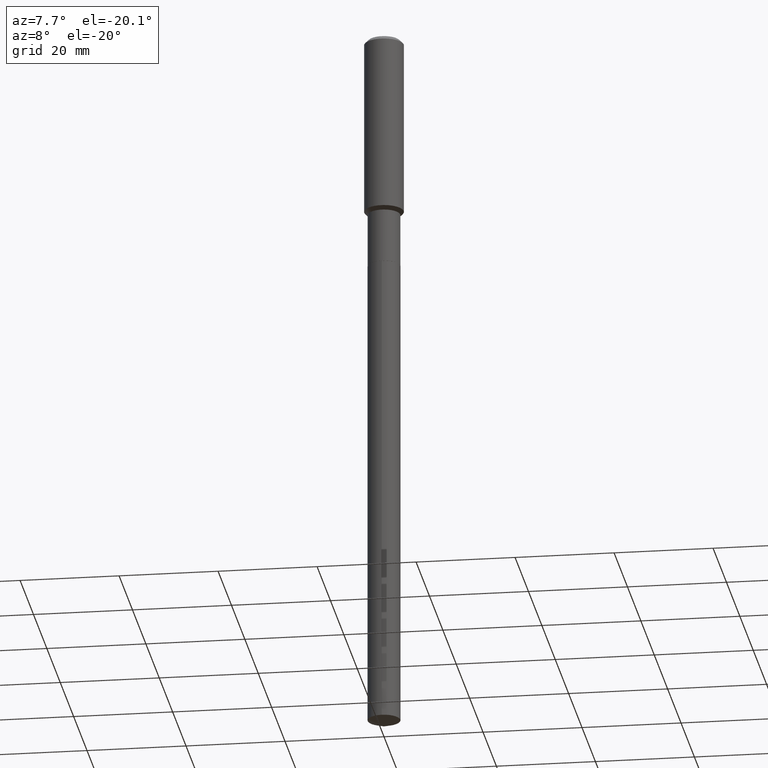
[diagram: clean part render]
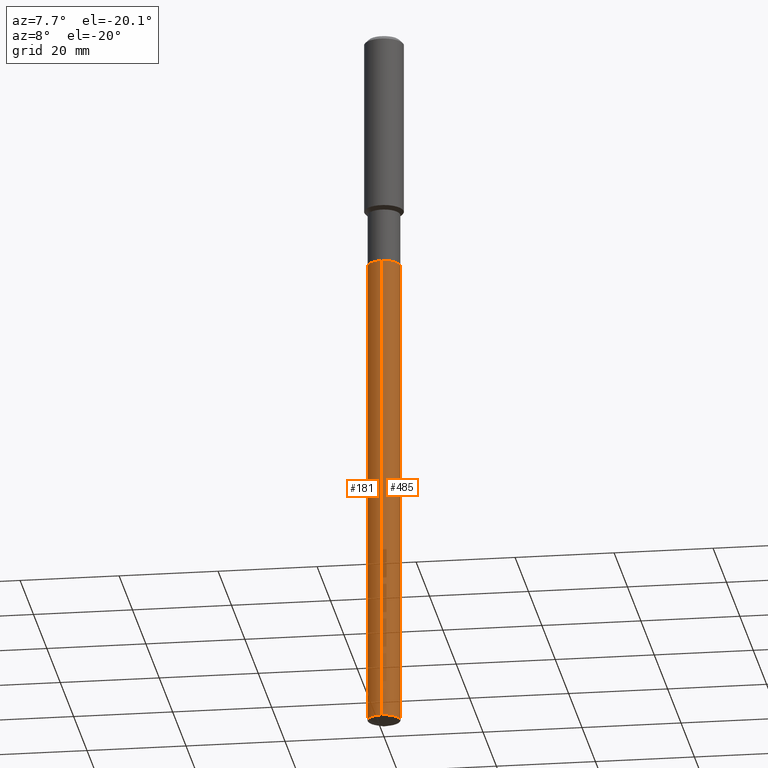
[diagram: same view with one multi-face feature highlighted, each face labeled with its STEP entity id]
A machine part, auxiliary view. The highlighted faces form ONE feature: a constant-radius fillet chain: 2 tangent blend faces with common blend radius 3.2995 mm. The faces share edges in the B-rep.
Their STEP definitions:
[1] entity #485 (Cylinder):
#10 = DIRECTION ( 'NONE',  ( -2.445505241732245177E-29, 3.491429161065903895E-15, 1.000000000000000000 ) ) ;
#24 = ORIENTED_EDGE ( 'NONE', *, *, #80, .F. ) ;
#47 = CARTESIAN_POINT ( 'NONE',  ( 4.611665074703930138E-29, -6.584235508790403973E-15, -1.885799999999999921 ) ) ;
#65 = EDGE_CURVE ( 'NONE', #186, #269, #183, .T. ) ;
#78 = AXIS2_PLACEMENT_3D ( 'NONE', #47, #174, #201 ) ;
#80 = EDGE_CURVE ( 'NONE', #276, #346, #283, .T. ) ;
#103 = EDGE_CURVE ( 'NONE', #186, #276, #472, .T. ) ;
#111 = AXIS2_PLACEMENT_3D ( 'NONE', #440, #480, #279 ) ;
#128 = CARTESIAN_POINT ( 'NONE',  ( 9.229950137525098796E-16, 0.1298999999999934096, -1.885800000000000365 ) ) ;
#131 = VECTOR ( 'NONE', #348, 39.37007874015748143 ) ;
#133 = LINE ( 'NONE', #352, #131 ) ;
#139 = EDGE_CURVE ( 'NONE', #269, #346, #133, .T. ) ;
#165 = CARTESIAN_POINT ( 'NONE',  ( -9.070868518313998437E-16, -0.1299000000000065935, -1.885799999999999255 ) ) ;
#174 = DIRECTION ( 'NONE',  ( -2.445505241732245177E-29, 3.491429161065903895E-15, 1.000000000000000000 ) ) ;
#176 = ORIENTED_EDGE ( 'NONE', *, *, #103, .F. ) ;
#183 = CIRCLE ( 'NONE', #372, 0.1298999999999999877 ) ;
#186 = VERTEX_POINT ( 'NONE', #430 ) ;
#201 = DIRECTION ( 'NONE',  ( -6.982962677686266711E-15, -1.000000000000000000, 4.206078512185163024E-15 ) ) ;
#210 = CARTESIAN_POINT ( 'NONE',  ( 1.393156143305985192E-28, -1.989018037792780127E-14, -5.696831029217619857 ) ) ;
#222 = EDGE_LOOP ( 'NONE', ( #378, #489, #24, #176 ) ) ;
#223 = CARTESIAN_POINT ( 'NONE',  ( 9.229950137525092880E-16, 0.1298999999999801147, -5.696831029217619857 ) ) ;
#234 = DIRECTION ( 'NONE',  ( -6.982962677686266711E-15, -1.000000000000000000, 0.000000000000000000 ) ) ;
#269 = VERTEX_POINT ( 'NONE', #223 ) ;
#276 = VERTEX_POINT ( 'NONE', #165 ) ;
#279 = DIRECTION ( 'NONE',  ( -6.982962677686266711E-15, -1.000000000000000000, 4.206078512185163024E-15 ) ) ;
#283 = CIRCLE ( 'NONE', #78, 0.1298999999999999877 ) ;
#287 = CYLINDRICAL_SURFACE ( 'NONE', #111, 0.1298999999999999877 ) ;
#342 = VECTOR ( 'NONE', #437, 39.37007874015748143 ) ;
#346 = VERTEX_POINT ( 'NONE', #128 ) ;
#348 = DIRECTION ( 'NONE',  ( -2.445505241732245177E-29, 3.491429161065903501E-15, 1.000000000000000000 ) ) ;
#352 = CARTESIAN_POINT ( 'NONE',  ( 9.229950137524160052E-16, 0.1298999999999934096, -1.885800000000000365 ) ) ;
#372 = AXIS2_PLACEMENT_3D ( 'NONE', #210, #10, #234 ) ;
#377 = FACE_OUTER_BOUND ( 'NONE', #222, .T. ) ;
#378 = ORIENTED_EDGE ( 'NONE', *, *, #65, .T. ) ;
#430 = CARTESIAN_POINT ( 'NONE',  ( -9.070868518313067581E-16, -0.1299000000000198607, -5.696831029217619857 ) ) ;
#437 = DIRECTION ( 'NONE',  ( -2.445505241732245177E-29, 3.491429161065903501E-15, 1.000000000000000000 ) ) ;
#440 = CARTESIAN_POINT ( 'NONE',  ( 4.611665074703930138E-29, -6.584235508790403973E-15, -1.885799999999999921 ) ) ;
#460 = CARTESIAN_POINT ( 'NONE',  ( -9.070868518313998437E-16, -0.1299000000000065935, -1.885799999999999255 ) ) ;
#472 = LINE ( 'NONE', #460, #342 ) ;
#480 = DIRECTION ( 'NONE',  ( -2.445505241732245177E-29, 3.491429161065903895E-15, 1.000000000000000000 ) ) ;
#485 = ADVANCED_FACE ( 'NONE', ( #377 ), #287, .T. ) ;
#489 = ORIENTED_EDGE ( 'NONE', *, *, #139, .T. ) ;
[2] entity #181 (Cylinder):
#37 = AXIS2_PLACEMENT_3D ( 'NONE', #464, #125, #311 ) ;
#50 = AXIS2_PLACEMENT_3D ( 'NONE', #468, #127, #271 ) ;
#73 = DIRECTION ( 'NONE',  ( -6.982962677686266711E-15, -1.000000000000000000, 0.000000000000000000 ) ) ;
#81 = CARTESIAN_POINT ( 'NONE',  ( 1.393156143305985192E-28, -1.989018037792780127E-14, -5.696831029217619857 ) ) ;
#92 = AXIS2_PLACEMENT_3D ( 'NONE', #81, #124, #73 ) ;
#103 = EDGE_CURVE ( 'NONE', #186, #276, #472, .T. ) ;
#124 = DIRECTION ( 'NONE',  ( -2.445505241732245177E-29, 3.491429161065903895E-15, 1.000000000000000000 ) ) ;
#125 = DIRECTION ( 'NONE',  ( -2.445505241732245177E-29, 3.491429161065903895E-15, 1.000000000000000000 ) ) ;
#127 = DIRECTION ( 'NONE',  ( -2.445505241732245177E-29, 3.491429161065903895E-15, 1.000000000000000000 ) ) ;
#128 = CARTESIAN_POINT ( 'NONE',  ( 9.229950137525098796E-16, 0.1298999999999934096, -1.885800000000000365 ) ) ;
#131 = VECTOR ( 'NONE', #348, 39.37007874015748143 ) ;
#133 = LINE ( 'NONE', #352, #131 ) ;
#139 = EDGE_CURVE ( 'NONE', #269, #346, #133, .T. ) ;
#165 = CARTESIAN_POINT ( 'NONE',  ( -9.070868518313998437E-16, -0.1299000000000065935, -1.885799999999999255 ) ) ;
#170 = ORIENTED_EDGE ( 'NONE', *, *, #139, .F. ) ;
#181 = ADVANCED_FACE ( 'NONE', ( #245 ), #361, .T. ) ;
#184 = CIRCLE ( 'NONE', #50, 0.1298999999999999877 ) ;
#185 = EDGE_CURVE ( 'NONE', #346, #276, #184, .T. ) ;
#186 = VERTEX_POINT ( 'NONE', #430 ) ;
#211 = CIRCLE ( 'NONE', #92, 0.1298999999999999877 ) ;
#223 = CARTESIAN_POINT ( 'NONE',  ( 9.229950137525092880E-16, 0.1298999999999801147, -5.696831029217619857 ) ) ;
#245 = FACE_OUTER_BOUND ( 'NONE', #366, .T. ) ;
#266 = EDGE_CURVE ( 'NONE', #269, #186, #211, .T. ) ;
#269 = VERTEX_POINT ( 'NONE', #223 ) ;
#271 = DIRECTION ( 'NONE',  ( -6.982962677686266711E-15, -1.000000000000000000, 4.206078512185163024E-15 ) ) ;
#276 = VERTEX_POINT ( 'NONE', #165 ) ;
#311 = DIRECTION ( 'NONE',  ( -6.982962677686266711E-15, -1.000000000000000000, 4.206078512185163024E-15 ) ) ;
#326 = ORIENTED_EDGE ( 'NONE', *, *, #266, .T. ) ;
#332 = ORIENTED_EDGE ( 'NONE', *, *, #185, .F. ) ;
#342 = VECTOR ( 'NONE', #437, 39.37007874015748143 ) ;
#346 = VERTEX_POINT ( 'NONE', #128 ) ;
#348 = DIRECTION ( 'NONE',  ( -2.445505241732245177E-29, 3.491429161065903501E-15, 1.000000000000000000 ) ) ;
#352 = CARTESIAN_POINT ( 'NONE',  ( 9.229950137524160052E-16, 0.1298999999999934096, -1.885800000000000365 ) ) ;
#361 = CYLINDRICAL_SURFACE ( 'NONE', #37, 0.1298999999999999877 ) ;
#366 = EDGE_LOOP ( 'NONE', ( #170, #326, #448, #332 ) ) ;
#430 = CARTESIAN_POINT ( 'NONE',  ( -9.070868518313067581E-16, -0.1299000000000198607, -5.696831029217619857 ) ) ;
#437 = DIRECTION ( 'NONE',  ( -2.445505241732245177E-29, 3.491429161065903501E-15, 1.000000000000000000 ) ) ;
#448 = ORIENTED_EDGE ( 'NONE', *, *, #103, .T. ) ;
#460 = CARTESIAN_POINT ( 'NONE',  ( -9.070868518313998437E-16, -0.1299000000000065935, -1.885799999999999255 ) ) ;
#464 = CARTESIAN_POINT ( 'NONE',  ( 4.611665074703930138E-29, -6.584235508790403973E-15, -1.885799999999999921 ) ) ;
#468 = CARTESIAN_POINT ( 'NONE',  ( 4.611665074703930138E-29, -6.584235508790403973E-15, -1.885799999999999921 ) ) ;
#472 = LINE ( 'NONE', #460, #342 ) ;